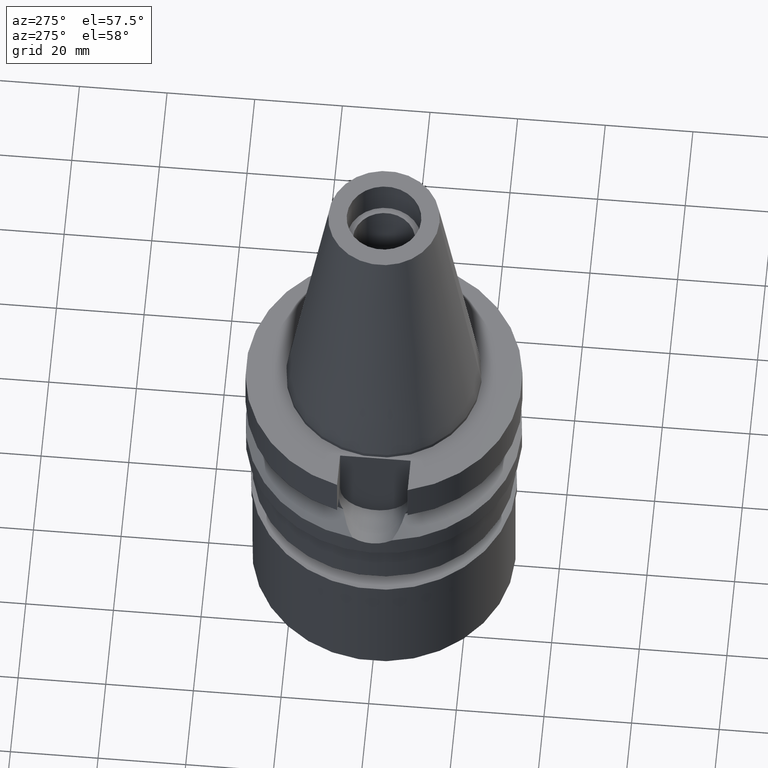
[diagram: clean part render]
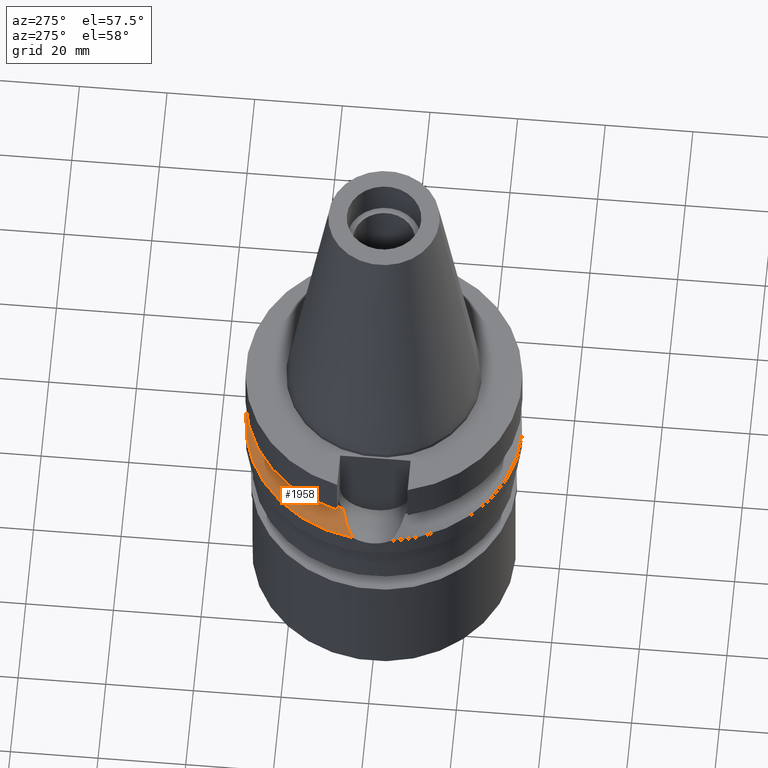
[diagram: same view with one face highlighted and labeled with its STEP entity id]
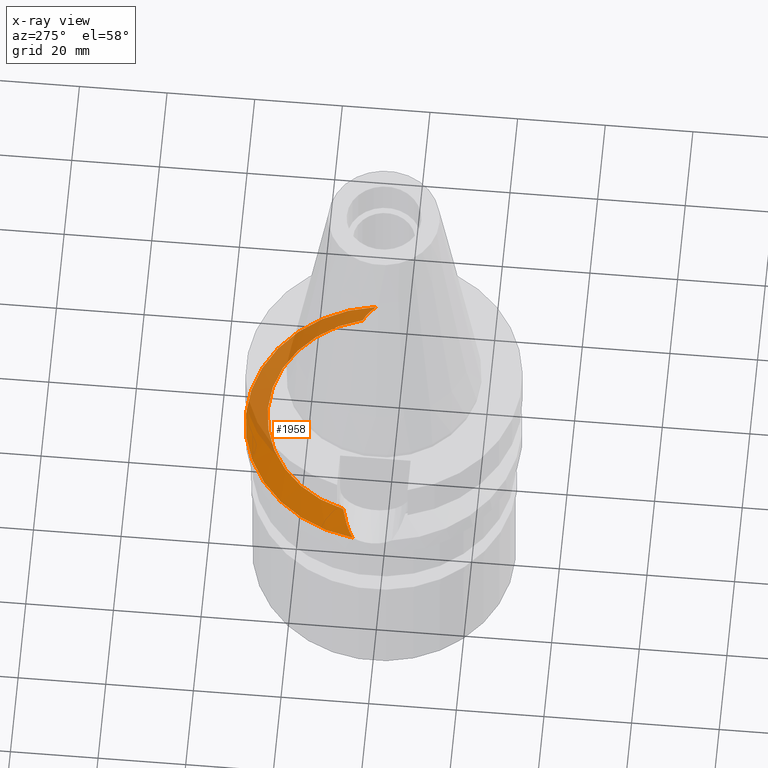
[diagram: x-ray of the same camera — body ghosted, the highlighted face saturated]
A machine part, auxiliary view. The second image highlights one B-rep face of the part: STEP entity #1958.
The next image is the same camera in x-ray: the body ghosted, the highlighted face saturated — about 47% of this face is hidden behind the body in this view.
In plain terms, the highlighted conical surface has half-angle 60 deg.
Its self-contained STEP definition (entity closure, byte-faithful):
#107 = CARTESIAN_POINT ( 'NONE',  ( -31.17899877608999759, 4.485536235554000051, -21.63449434733000132 ) ) ;
#136 = ORIENTED_EDGE ( 'NONE', *, *, #2055, .F. ) ;
#162 = CONICAL_SURFACE ( 'NONE', #989, 29.00000000000000000, 1.047197551196400456 ) ;
#164 = CARTESIAN_POINT ( 'NONE',  ( 29.71724098140700576, 5.435620847835209268, -20.88975658658970502 ) ) ;
#182 = CARTESIAN_POINT ( 'NONE',  ( -28.25151938469908686, 6.152949151759735003, -20.14142247855264856 ) ) ;
#183 = CARTESIAN_POINT ( 'NONE',  ( 28.96545501524441946, 5.825352976449365450, -20.50601593551405344 ) ) ;
#236 = ORIENTED_EDGE ( 'NONE', *, *, #2320, .F. ) ;
#289 = ORIENTED_EDGE ( 'NONE', *, *, #2284, .F. ) ;
#297 = CARTESIAN_POINT ( 'NONE',  ( 31.17899877608999759, 4.485536235554000051, -21.63449434733000132 ) ) ;
#371 = CARTESIAN_POINT ( 'NONE',  ( -27.60258220698736409, 6.419976823139538880, -19.80973706213701391 ) ) ;
#417 = CARTESIAN_POINT ( 'NONE',  ( 0.0000000000000000000, 0.0000000000000000000, -21.63449434733000132 ) ) ;
#418 = CIRCLE ( 'NONE', #1650, 26.49999999999998224 ) ;
#442 = DIRECTION ( 'NONE',  ( 0.0000000000000000000, 0.0000000000000000000, 1.000000000000000000 ) ) ;
#478 = B_SPLINE_CURVE_WITH_KNOTS ( 'NONE', 3,
 ( #2684, #617, #1996, #1296, #164, #2927, #859, #2718, #183, #1099, #725, #2777, #1857 ),
 .UNSPECIFIED., .F., .F.,
 ( 4, 2, 2, 1, 2, 2, 4 ),
 ( 0.0000000000000000000, 0.2499999999999928391, 0.3749999999999892308, 0.4374999999999883427, 0.4687499999999888978, 0.4999999999999894529, 1.000000000000000000 ),
 .UNSPECIFIED. ) ;
#486 = FACE_OUTER_BOUND ( 'NONE', #1089, .T. ) ;
#502 = CARTESIAN_POINT ( 'NONE',  ( 0.0000000000000000000, 0.0000000000000000000, -20.19111867435999841 ) ) ;
#508 = CIRCLE ( 'NONE', #552, 31.50000000000001421 ) ;
#516 = EDGE_CURVE ( 'NONE', #1524, #2098, #418, .T. ) ;
#552 = AXIS2_PLACEMENT_3D ( 'NONE', #928, #731, #2109 ) ;
#594 = CIRCLE ( 'NONE', #1940, 31.50000000000000000 ) ;
#617 = CARTESIAN_POINT ( 'NONE',  ( 30.85603870671229743, 4.730555914052372302, -21.47007732650559930 ) ) ;
#725 = CARTESIAN_POINT ( 'NONE',  ( 27.92046224594381343, 6.324814606953829355, -19.97237158114944933 ) ) ;
#731 = DIRECTION ( 'NONE',  ( 0.0000000000000000000, 0.0000000000000000000, -1.000000000000000000 ) ) ;
#827 = ORIENTED_EDGE ( 'NONE', *, *, #516, .F. ) ;
#859 = CARTESIAN_POINT ( 'NONE',  ( 29.24164397236831547, 5.688327772311479791, -20.64703451761420183 ) ) ;
#928 = CARTESIAN_POINT ( 'NONE',  ( 0.0000000000000000000, 0.0000000000000000000, -21.63449434733000132 ) ) ;
#989 = AXIS2_PLACEMENT_3D ( 'NONE', #502, #1394, #2165 ) ;
#1089 = EDGE_LOOP ( 'NONE', ( #289, #827, #2912, #236, #136 ) ) ;
#1098 = CARTESIAN_POINT ( 'NONE',  ( -25.53175183775000079, 7.097862220092999941, -18.74774300138999905 ) ) ;
#1099 = CARTESIAN_POINT ( 'NONE',  ( 28.91113003952310834, 5.851694892670679771, -20.47827523049932807 ) ) ;
#1286 = CARTESIAN_POINT ( 'NONE',  ( -27.86872103337319473, 6.314494543960516459, -19.94582436782385315 ) ) ;
#1293 = CARTESIAN_POINT ( 'NONE',  ( -30.53398457861403870, 4.974888283299138791, -21.30612151491710549 ) ) ;
#1296 = CARTESIAN_POINT ( 'NONE',  ( 29.91917756780351567, 5.320807346238257018, -20.99275369674065317 ) ) ;
#1306 = DIRECTION ( 'NONE',  ( 0.9634623335000935818, 0.2678438573619981722, 0.0000000000000000000 ) ) ;
#1336 = CARTESIAN_POINT ( 'NONE',  ( -28.43881608829880037, 6.071344972486594216, -20.23708974309603903 ) ) ;
#1394 = DIRECTION ( 'NONE',  ( 0.0000000000000000000, 0.0000000000000000000, -1.000000000000000000 ) ) ;
#1408 = CARTESIAN_POINT ( 'NONE',  ( -28.65014958305451032, 5.974893549125781966, -20.34500778998760140 ) ) ;
#1503 = CARTESIAN_POINT ( 'NONE',  ( -28.73918265378324577, 5.933311742458932336, -20.39047163724270462 ) ) ;
#1524 = VERTEX_POINT ( 'NONE', #2261 ) ;
#1546 = CARTESIAN_POINT ( 'NONE',  ( 0.0000000000000000000, 31.50000000000000000, -21.63449434733000132 ) ) ;
#1650 = AXIS2_PLACEMENT_3D ( 'NONE', #2503, #442, #1306 ) ;
#1652 = EDGE_CURVE ( 'NONE', #2465, #1524, #478, .T. ) ;
#1767 = CARTESIAN_POINT ( 'NONE',  ( -26.77134595132407568, 6.727774513705893078, -19.38420082808132250 ) ) ;
#1857 = CARTESIAN_POINT ( 'NONE',  ( 25.53175183775000079, 7.097862220092999941, -18.74774300138999905 ) ) ;
#1940 = AXIS2_PLACEMENT_3D ( 'NONE', #417, #2710, #2479 ) ;
#1958 = ADVANCED_FACE ( 'NONE', ( #486 ), #162, .T. ) ;
#1973 = CARTESIAN_POINT ( 'NONE',  ( -28.82847226416410180, 5.891176247395062404, -20.43606708855373100 ) ) ;
#1996 = CARTESIAN_POINT ( 'NONE',  ( 30.50071339596846443, 4.970967318271940272, -21.28919838321029090 ) ) ;
#2055 = EDGE_CURVE ( 'NONE', #2645, #2319, #508, .T. ) ;
#2098 = VERTEX_POINT ( 'NONE', #2268 ) ;
#2109 = DIRECTION ( 'NONE',  ( -0.9898094849552905306, 0.1423979757318985240, 0.0000000000000000000 ) ) ;
#2165 = DIRECTION ( 'NONE',  ( 0.0000000000000000000, -1.000000000000000000, 0.0000000000000000000 ) ) ;
#2169 = CARTESIAN_POINT ( 'NONE',  ( -29.75988394005175763, 5.446061877106960658, -20.91170615566992552 ) ) ;
#2261 = CARTESIAN_POINT ( 'NONE',  ( 25.53175183775000079, 7.097862220092999941, -18.74774300138999905 ) ) ;
#2268 = CARTESIAN_POINT ( 'NONE',  ( -25.53175183775000079, 7.097862220092999941, -18.74774300138999905 ) ) ;
#2284 = EDGE_CURVE ( 'NONE', #2098, #2645, #2954, .T. ) ;
#2319 = VERTEX_POINT ( 'NONE', #1546 ) ;
#2320 = EDGE_CURVE ( 'NONE', #2319, #2465, #594, .T. ) ;
#2437 = CARTESIAN_POINT ( 'NONE',  ( -26.17342874554087828, 6.921476233718497184, -19.07740286209360292 ) ) ;
#2465 = VERTEX_POINT ( 'NONE', #297 ) ;
#2479 = DIRECTION ( 'NONE',  ( 0.0000000000000000000, 1.000000000000000000, 0.0000000000000000000 ) ) ;
#2503 = CARTESIAN_POINT ( 'NONE',  ( 0.0000000000000000000, 0.0000000000000000000, -18.74774300138999905 ) ) ;
#2645 = VERTEX_POINT ( 'NONE', #2868 ) ;
#2684 = CARTESIAN_POINT ( 'NONE',  ( 31.17899877608999759, 4.485536235554000051, -21.63449434733000132 ) ) ;
#2710 = DIRECTION ( 'NONE',  ( 0.0000000000000000000, 0.0000000000000000000, -1.000000000000000000 ) ) ;
#2718 = CARTESIAN_POINT ( 'NONE',  ( 29.07653744636959914, 5.770723472665339138, -20.56273560556194369 ) ) ;
#2777 = CARTESIAN_POINT ( 'NONE',  ( 26.81342770405041165, 6.745551486849979739, -19.40620068067175552 ) ) ;
#2868 = CARTESIAN_POINT ( 'NONE',  ( -31.17899877608999759, 4.485536235554000051, -21.63449434733000132 ) ) ;
#2891 = CARTESIAN_POINT ( 'NONE',  ( -28.79819616159713647, 5.905538370322251041, -20.42060658661313255 ) ) ;
#2912 = ORIENTED_EDGE ( 'NONE', *, *, #1652, .F. ) ;
#2927 = CARTESIAN_POINT ( 'NONE',  ( 29.40219913629992377, 5.604627866721650697, -20.72898711305936104 ) ) ;
#2954 = B_SPLINE_CURVE_WITH_KNOTS ( 'NONE', 3,
 ( #1098, #2437, #1767, #371, #1286, #182, #1336, #1408, #1503, #2891, #1973, #2169, #1293, #107 ),
 .UNSPECIFIED., .F., .F.,
 ( 4, 2, 2, 1, 1, 2, 2, 4 ),
 ( 0.0000000000000000000, 0.2500000000000119904, 0.3750000000000179856, 0.4375000000000209832, 0.4687500000000216493, 0.4843750000000212608, 0.5000000000000208722, 1.000000000000000000 ),
 .UNSPECIFIED. ) ;